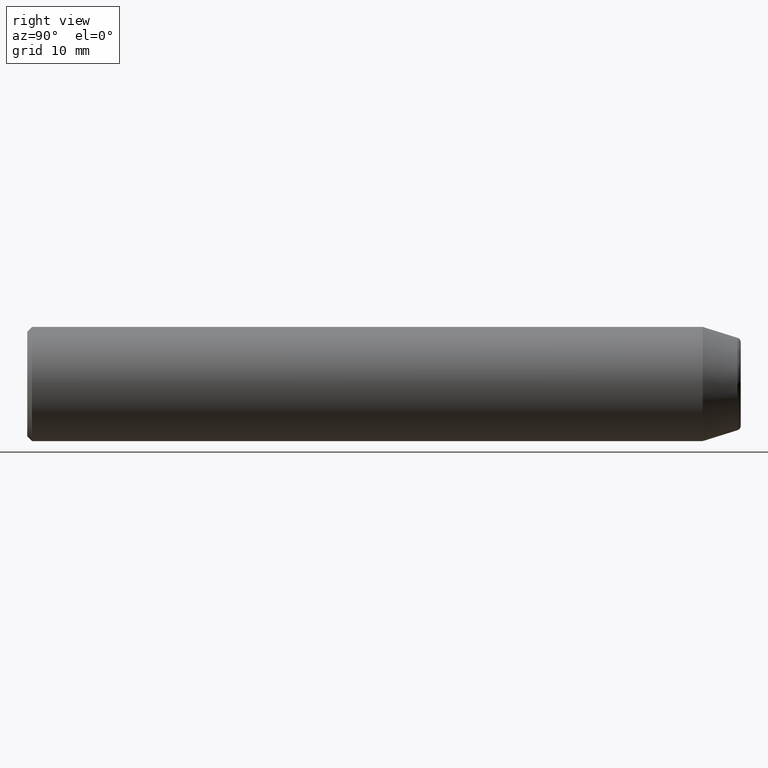
[diagram: clean part render]
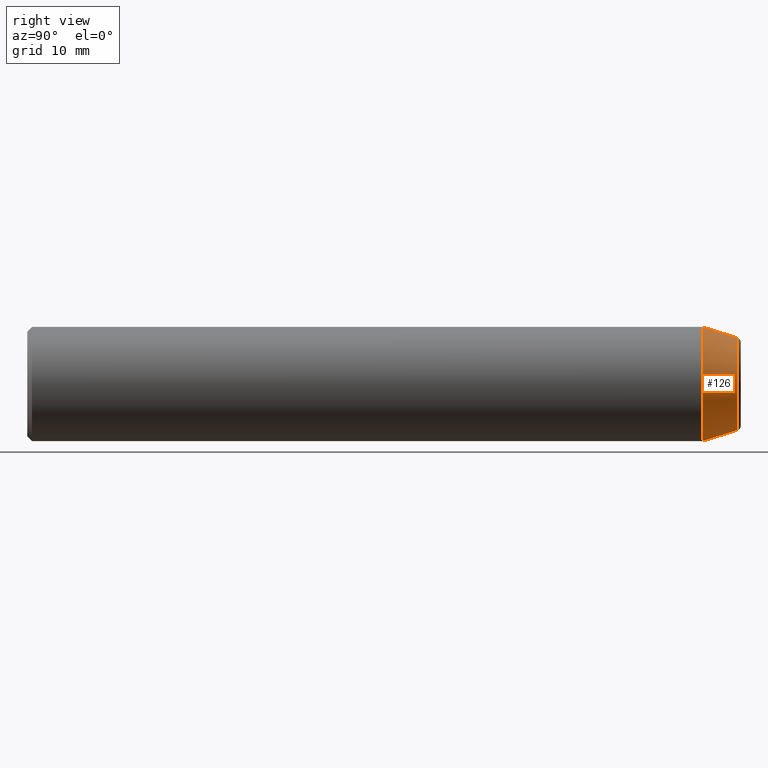
[diagram: same view with one face highlighted and labeled with its STEP entity id]
A machine part, right view. The second image highlights one B-rep face of the part: STEP entity #126.
In plain terms, the highlighted conical surface has half-angle 17.354 deg.
Its self-contained STEP definition (entity closure, byte-faithful):
#8 = CIRCLE ( 'NONE', #188, 4.859644532331230948 ) ;
#31 = EDGE_CURVE ( 'NONE', #308, #308, #8, .T. ) ;
#46 = EDGE_LOOP ( 'NONE', ( #131 ) ) ;
#50 = CARTESIAN_POINT ( 'NONE',  ( 0.000000000000000000, 74.64913749651032049, -4.859644532331230948 ) ) ;
#54 = ORIENTED_EDGE ( 'NONE', *, *, #302, .F. ) ;
#60 = DIRECTION ( 'NONE',  ( 0.000000000000000000, 0.000000000000000000, -1.000000000000000000 ) ) ;
#65 = DIRECTION ( 'NONE',  ( 0.000000000000000000, 0.000000000000000000, -1.000000000000000000 ) ) ;
#80 = CARTESIAN_POINT ( 'NONE',  ( 0.000000000000000000, 71.00000000007185008, 0.000000000000000000 ) ) ;
#87 = CARTESIAN_POINT ( 'NONE',  ( 0.000000000000000000, 70.99999999999998579, -6.000000000000000888 ) ) ;
#103 = FACE_OUTER_BOUND ( 'NONE', #257, .T. ) ;
#105 = DIRECTION ( 'NONE',  ( 0.000000000000000000, -1.000000000000000000, 0.000000000000000000 ) ) ;
#126 = ADVANCED_FACE ( 'NONE', ( #103, #195 ), #307, .T. ) ;
#131 = ORIENTED_EDGE ( 'NONE', *, *, #31, .T. ) ;
#175 = CARTESIAN_POINT ( 'NONE',  ( 0.000000000000000000, 74.64913749651032049, 0.000000000000000000 ) ) ;
#176 = DIRECTION ( 'NONE',  ( -0.000000000000000000, -1.000000000000000000, -0.000000000000000000 ) ) ;
#188 = AXIS2_PLACEMENT_3D ( 'NONE', #175, #282, #65 ) ;
#192 = AXIS2_PLACEMENT_3D ( 'NONE', #235, #176, #241 ) ;
#195 = FACE_BOUND ( 'NONE', #46, .T. ) ;
#227 = AXIS2_PLACEMENT_3D ( 'NONE', #80, #105, #60 ) ;
#235 = CARTESIAN_POINT ( 'NONE',  ( 0.000000000000000000, 70.99999999999998579, 0.000000000000000000 ) ) ;
#241 = DIRECTION ( 'NONE',  ( 0.000000000000000000, 0.000000000000000000, -1.000000000000000000 ) ) ;
#256 = CIRCLE ( 'NONE', #192, 6.000000000000000888 ) ;
#257 = EDGE_LOOP ( 'NONE', ( #54 ) ) ;
#282 = DIRECTION ( 'NONE',  ( 0.000000000000000000, -1.000000000000000000, 0.000000000000000000 ) ) ;
#302 = EDGE_CURVE ( 'NONE', #306, #306, #256, .T. ) ;
#306 = VERTEX_POINT ( 'NONE', #87 ) ;
#307 = CONICAL_SURFACE ( 'NONE', #227, 5.999999999971805664, 0.3028848683740845149 ) ;
#308 = VERTEX_POINT ( 'NONE', #50 ) ;